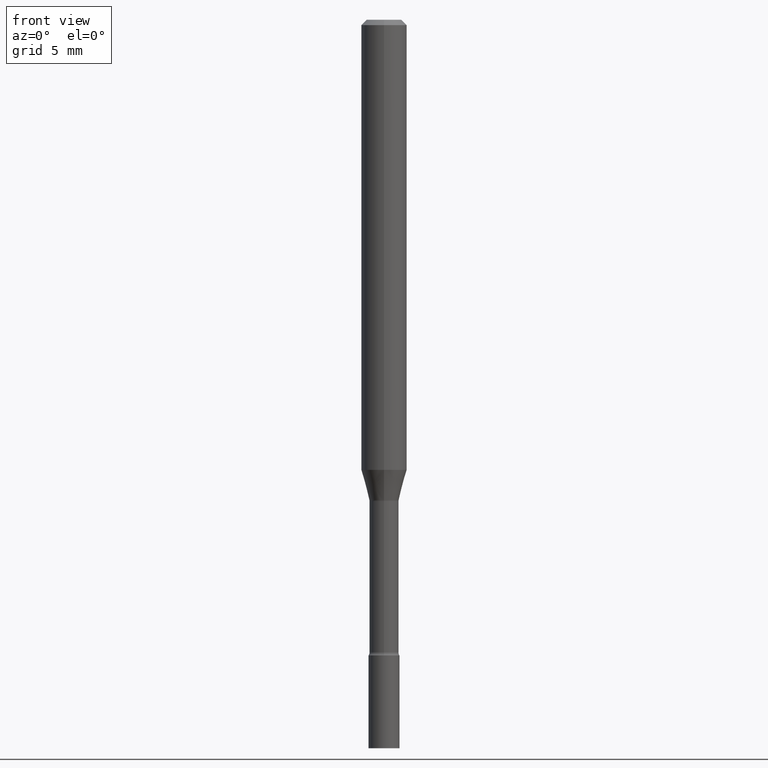
[diagram: clean part render]
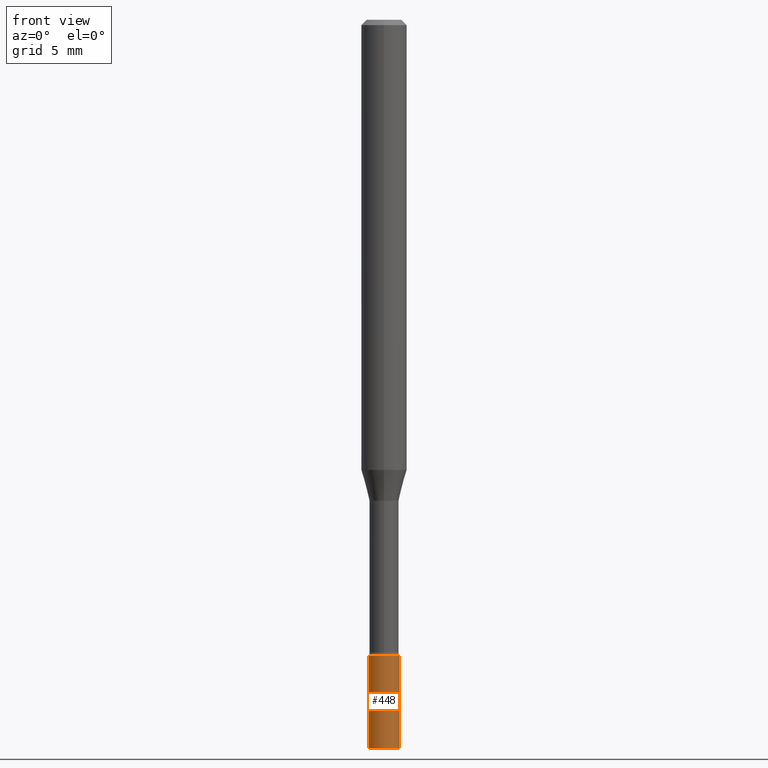
[diagram: same view with one face highlighted and labeled with its STEP entity id]
A machine part, front view. The second image highlights one B-rep face of the part: STEP entity #448.
In plain terms, the highlighted cylindrical surface (edge-blend (fillet) strip) has radius 1.0795 mm, axis along (-0, 0, 1).
Its self-contained STEP definition (entity closure, byte-faithful):
#24 = ORIENTED_EDGE ( 'NONE', *, *, #214, .T. ) ;
#28 = LINE ( 'NONE', #158, #187 ) ;
#36 = CARTESIAN_POINT ( 'NONE',  ( -0.04249999999999999611, -6.235818144285747159E-15, -2.000000000000000000 ) ) ;
#44 = LINE ( 'NONE', #47, #131 ) ;
#47 = CARTESIAN_POINT ( 'NONE',  ( -0.04249999999999999611, 3.019806626980425514E-16, -2.090547413358334859E-30 ) ) ;
#72 = VERTEX_POINT ( 'NONE', #139 ) ;
#91 = AXIS2_PLACEMENT_3D ( 'NONE', #239, #115, #275 ) ;
#115 = DIRECTION ( 'NONE',  ( -2.445468806185136597E-29, 3.491481338843145583E-15, 1.000000000000000000 ) ) ;
#121 = CARTESIAN_POINT ( 'NONE',  ( 4.890937612370273194E-29, -6.982962677686291165E-15, -2.000000000000000000 ) ) ;
#131 = VECTOR ( 'NONE', #322, 39.37007874015748143 ) ;
#137 = EDGE_CURVE ( 'NONE', #156, #192, #28, .T. ) ;
#139 = CARTESIAN_POINT ( 'NONE',  ( -0.04249999999999999611, -6.235818144285747159E-15, -1.745000000000000107 ) ) ;
#156 = VERTEX_POINT ( 'NONE', #426 ) ;
#158 = CARTESIAN_POINT ( 'NONE',  ( 0.04249999999999999611, -2.967759138016663549E-16, 2.072375129713272502E-30 ) ) ;
#187 = VECTOR ( 'NONE', #467, 39.37007874015748143 ) ;
#192 = VERTEX_POINT ( 'NONE', #490 ) ;
#199 = EDGE_CURVE ( 'NONE', #384, #72, #44, .T. ) ;
#210 = DIRECTION ( 'NONE',  ( 1.000000000000000000, -6.982962677686276177E-15, 0.000000000000000000 ) ) ;
#214 = EDGE_CURVE ( 'NONE', #384, #156, #503, .T. ) ;
#230 = AXIS2_PLACEMENT_3D ( 'NONE', #121, #319, #210 ) ;
#239 = CARTESIAN_POINT ( 'NONE',  ( 4.267343066793063832E-29, -6.092634936281288846E-15, -1.745000000000000107 ) ) ;
#275 = DIRECTION ( 'NONE',  ( 1.000000000000000000, -6.982962677686276177E-15, 0.000000000000000000 ) ) ;
#284 = FACE_OUTER_BOUND ( 'NONE', #422, .T. ) ;
#302 = ORIENTED_EDGE ( 'NONE', *, *, #137, .T. ) ;
#316 = CIRCLE ( 'NONE', #91, 0.04249999999999999611 ) ;
#317 = AXIS2_PLACEMENT_3D ( 'NONE', #404, #332, #320 ) ;
#319 = DIRECTION ( 'NONE',  ( -2.445468806185136597E-29, 3.491481338843145583E-15, 1.000000000000000000 ) ) ;
#320 = DIRECTION ( 'NONE',  ( 1.000000000000000000, -6.982962677686267499E-15, 4.876176775795935793E-29 ) ) ;
#322 = DIRECTION ( 'NONE',  ( -2.445468806185136877E-29, 3.491481338843145188E-15, 1.000000000000000000 ) ) ;
#332 = DIRECTION ( 'NONE',  ( -2.445468806185136597E-29, 3.491481338843145583E-15, 1.000000000000000000 ) ) ;
#354 = EDGE_CURVE ( 'NONE', #72, #192, #316, .T. ) ;
#384 = VERTEX_POINT ( 'NONE', #36 ) ;
#404 = CARTESIAN_POINT ( 'NONE',  ( 0.000000000000000000, 0.000000000000000000, 0.000000000000000000 ) ) ;
#422 = EDGE_LOOP ( 'NONE', ( #501, #24, #302, #454 ) ) ;
#426 = CARTESIAN_POINT ( 'NONE',  ( 0.04249999999999999611, -7.279738591487957027E-15, -2.000000000000000000 ) ) ;
#447 = CYLINDRICAL_SURFACE ( 'NONE', #317, 0.04249999999999999611 ) ;
#448 = ADVANCED_FACE ( 'NONE', ( #284 ), #447, .T. ) ;
#454 = ORIENTED_EDGE ( 'NONE', *, *, #354, .F. ) ;
#467 = DIRECTION ( 'NONE',  ( -2.445468806185136877E-29, 3.491481338843145188E-15, 1.000000000000000000 ) ) ;
#490 = CARTESIAN_POINT ( 'NONE',  ( 0.04249999999999999611, -6.389410850082955497E-15, -1.745000000000000107 ) ) ;
#501 = ORIENTED_EDGE ( 'NONE', *, *, #199, .F. ) ;
#503 = CIRCLE ( 'NONE', #230, 0.04249999999999999611 ) ;